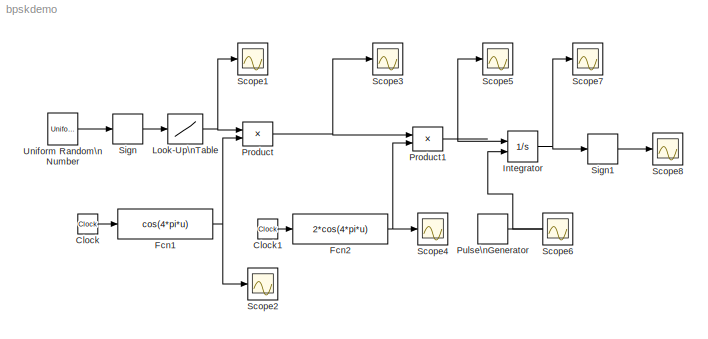
MODEL bpskdemo
KIND model
CONFIG AbsTol = 1e-3
CONFIG FixedStep = .0001
CONFIG MaxStep = .0001
CONFIG MinStep = .00000001
CONFIG RelTol = 1e-3
CONFIG Solver = ode45
CONFIG SolverMode = Auto
CONFIG StartTime = 0.0
CONFIG StopTime = 999999
BLOCK [Clock] Clock
  Decimation = 10
  DisplayTime = off
BLOCK [Clock] Clock1
  Decimation = 10
  DisplayTime = off
BLOCK [Fcn] Fcn1
  Expr = cos(4*pi*u)
BLOCK [Fcn] Fcn2
  Expr = 2*cos(4*pi*u)
BLOCK [Integrator] Integrator
  AbsoluteTolerance = auto
  ExternalReset = rising
  InitialCondition = 0
  InitialConditionSource = internal
  LimitOutput = off
  LowerSaturationLimit = -inf
  Ports = [2, 1]
  ShowSaturationPort = off
  ShowStatePort = off
  UpperSaturationLimit = inf
BLOCK [Lookup] Look-Up\nTable
  InputValues = [-1,0,1]
  OutputValues = [-1,1,1]
BLOCK [Product] Product
  Inputs = 2
  Multiplication = Element-wise(.*)
  Ports = [2, 1]
  SaturateOnIntegerOverflow = on
BLOCK [Product] Product1
  Inputs = 2
  Multiplication = Element-wise(.*)
  Ports = [2, 1]
  SaturateOnIntegerOverflow = on
BLOCK [DiscretePulseGenerator] Pulse\nGenerator
  Amplitude = 1
  Period = 1
  PhaseDelay = 0
  PulseType = Time-based
  PulseWidth = 50
  SampleTime = 1
  VectorParams1D = on
BLOCK [Scope] Scope1
  DataFormat = StructureWithTime
  Decimation = 1
  Floating = off
  Grid = on
  LimitDataPoints = on
  MaxDataPoints = 5000
  NumInputPorts = 1
  Ports = [1]
  SampleInput = off
  SampleTime = 0
  SaveName = ScopeData3
  SaveToWorkspace = off
  TickLabels = OneTimeTick
  TimeRange = 10
  YMax = 5
  YMin = -5
  ZoomMode = on
BLOCK [Scope] Scope2
  DataFormat = StructureWithTime
  Decimation = 1
  Floating = off
  Grid = on
  LimitDataPoints = on
  MaxDataPoints = 5000
  NumInputPorts = 1
  Ports = [1]
  SampleInput = off
  SampleTime = 0
  SaveName = ScopeData
  SaveToWorkspace = off
  TickLabels = OneTimeTick
  TimeRange = 10
  YMax = 5
  YMin = -5
  ZoomMode = on
BLOCK [Scope] Scope3
  DataFormat = StructureWithTime
  Decimation = 1
  Floating = off
  Grid = on
  LimitDataPoints = on
  MaxDataPoints = 5000
  NumInputPorts = 1
  Ports = [1]
  SampleInput = off
  SampleTime = 0
  SaveName = ScopeData1
  SaveToWorkspace = off
  TickLabels = OneTimeTick
  TimeRange = 10
  YMax = 5
  YMin = -5
  ZoomMode = on
BLOCK [Scope] Scope4
  DataFormat = StructureWithTime
  Decimation = 1
  Floating = off
  Grid = on
  LimitDataPoints = on
  MaxDataPoints = 5000
  NumInputPorts = 1
  Ports = [1]
  SampleInput = off
  SampleTime = 0
  SaveName = ScopeData5
  SaveToWorkspace = off
  TickLabels = OneTimeTick
  TimeRange = 10
  YMax = 5
  YMin = -5
  ZoomMode = on
BLOCK [Scope] Scope5
  DataFormat = StructureWithTime
  Decimation = 1
  Floating = off
  Grid = on
  LimitDataPoints = on
  MaxDataPoints = 5000
  NumInputPorts = 1
  Ports = [1]
  SampleInput = off
  SampleTime = 0
  SaveName = ScopeData4
  SaveToWorkspace = off
  TickLabels = OneTimeTick
  TimeRange = 10
  YMax = 5
  YMin = -5
  ZoomMode = on
BLOCK [Scope] Scope6
  DataFormat = StructureWithTime
  Decimation = 1
  Floating = off
  Grid = on
  LimitDataPoints = on
  MaxDataPoints = 5000
  NumInputPorts = 1
  Ports = [1]
  SampleInput = off
  SampleTime = 0
  SaveName = ScopeData7
  SaveToWorkspace = off
  TickLabels = OneTimeTick
  TimeRange = 10
  YMax = 5
  YMin = -5
  ZoomMode = on
BLOCK [Scope] Scope7
  DataFormat = StructureWithTime
  Decimation = 1
  Floating = off
  Grid = on
  LimitDataPoints = on
  MaxDataPoints = 5000
  NumInputPorts = 1
  Ports = [1]
  SampleInput = off
  SampleTime = 0
  SaveName = ScopeData6
  SaveToWorkspace = off
  TickLabels = OneTimeTick
  TimeRange = 10
  YMax = 5
  YMin = -5
  ZoomMode = on
BLOCK [Scope] Scope8
  DataFormat = StructureWithTime
  Decimation = 1
  Floating = off
  Grid = on
  LimitDataPoints = on
  MaxDataPoints = 5000
  NumInputPorts = 1
  Ports = [1]
  SampleInput = off
  SampleTime = 0
  SaveName = ScopeData2
  SaveToWorkspace = off
  TickLabels = OneTimeTick
  TimeRange = 10
  YMax = 5
  YMin = -5
  ZoomMode = on
BLOCK [Signum] Sign
BLOCK [Signum] Sign1
BLOCK [UniformRandomNumber] Uniform Random\nNumber
  Maximum = 1
  Minimum = -1
  SampleTime = 1
  Seed = 0
  VectorParams1D = on
LINE Clock1:1 -> Fcn2:1
LINE Clock:1 -> Fcn1:1
NET Fcn1:1 -> Product:2, Scope2:1
NET Fcn2:1 -> Product1:2, Scope4:1
NET Integrator:1 -> Scope7:1, Sign1:1
NET Look-Up\nTable:1 -> Product:1, Scope1:1
NET Product1:1 -> Integrator:1, Scope5:1
NET Product:1 -> Product1:1, Scope3:1
NET Pulse\nGenerator:1 -> Integrator:2, Scope6:1
LINE Sign1:1 -> Scope8:1
LINE Sign:1 -> Look-Up\nTable:1
LINE Uniform Random\nNumber:1 -> Sign:1
note: NET lines group one-source signal fan-out (src -> all destinations, sorted); 1:1 wires keep LINE
